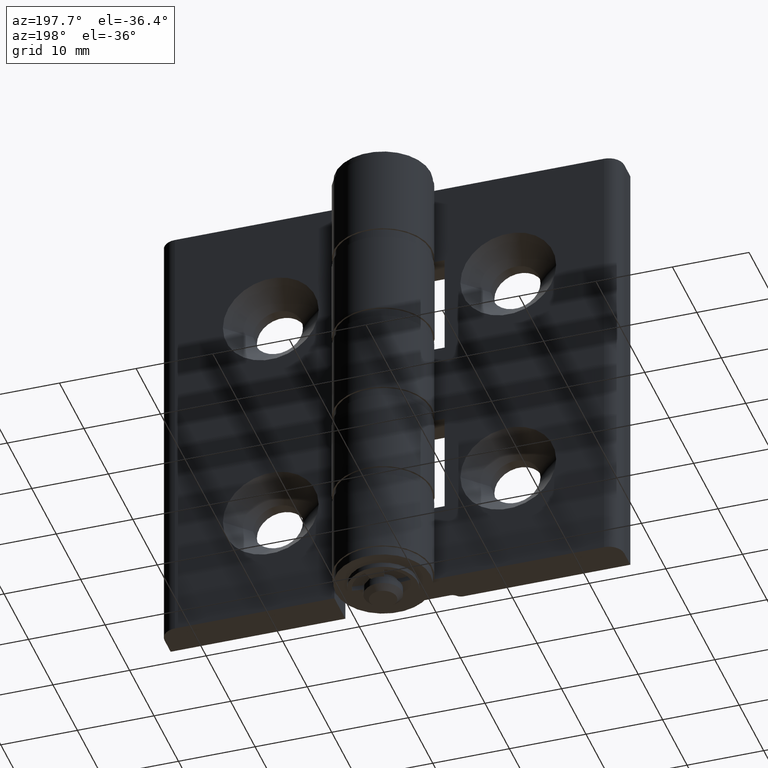
[diagram: clean part render]
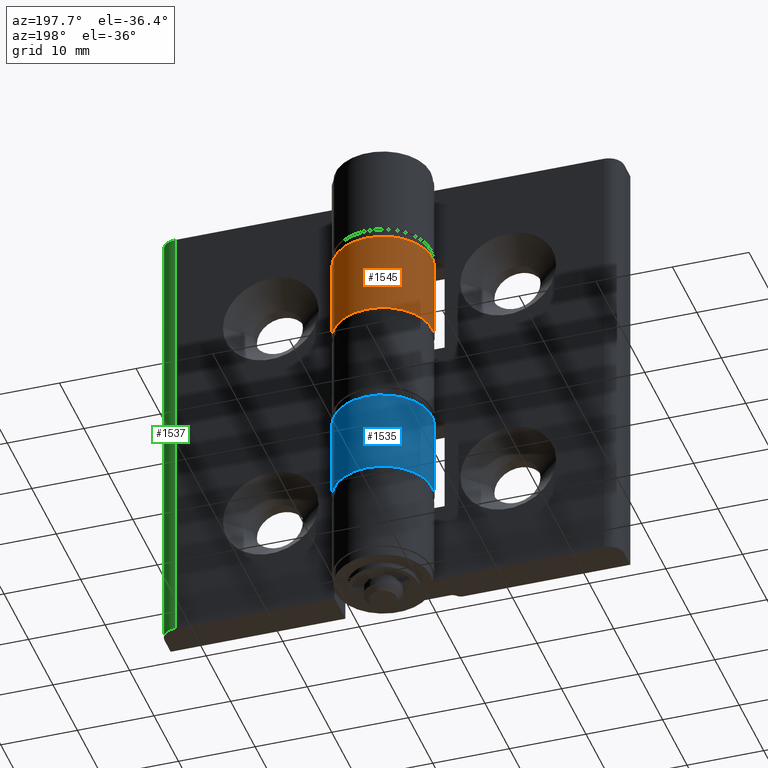
[diagram: same view with three faces highlighted in distinct colors, each labeled with its STEP entity id]
A machine part, auxiliary view with three faces highlighted in distinct colors.
Their STEP definitions:

[orange] entity #1545 — the highlighted cylindrical surface (partial cylindrical patch) has radius 6.4 mm, axis along (0, 0, -1).
#250=FACE_OUTER_BOUND('',#385,.T.);
#385=EDGE_LOOP('',(#1331,#1332,#1333,#1334));
#484=LINE('',#2563,#587);
#496=LINE('',#2593,#599);
#587=VECTOR('',#2083,11.);
#599=VECTOR('',#2115,11.);
#684=CIRCLE('',#1689,6.4);
#688=CIRCLE('',#1695,6.4);
#804=VERTEX_POINT('',#2535);
#805=VERTEX_POINT('',#2537);
#811=VERTEX_POINT('',#2553);
#812=VERTEX_POINT('',#2555);
#971=EDGE_CURVE('',#805,#804,#684,.T.);
#980=EDGE_CURVE('',#812,#811,#688,.T.);
#984=EDGE_CURVE('',#804,#812,#484,.T.);
#998=EDGE_CURVE('',#811,#805,#496,.T.);
#1331=ORIENTED_EDGE('',*,*,#971,.T.);
#1332=ORIENTED_EDGE('',*,*,#984,.T.);
#1333=ORIENTED_EDGE('',*,*,#980,.T.);
#1334=ORIENTED_EDGE('',*,*,#998,.T.);
#1465=CYLINDRICAL_SURFACE('',#1711,6.4);
#1545=ADVANCED_FACE('',(#250),#1465,.T.);
#1689=AXIS2_PLACEMENT_3D('',#2538,#2056,#2057);
#1695=AXIS2_PLACEMENT_3D('',#2556,#2073,#2074);
#1711=AXIS2_PLACEMENT_3D('',#2598,#2122,#2123);
#2056=DIRECTION('center_axis',(0.,0.,1.));
#2057=DIRECTION('ref_axis',(-1.,0.,0.));
#2073=DIRECTION('center_axis',(-1.48029736616688E-16,-3.28692043842089E-32,
-1.));
#2074=DIRECTION('ref_axis',(-1.,0.,0.));
#2083=DIRECTION('',(0.,0.,1.));
#2115=DIRECTION('',(0.,0.,-1.));
#2122=DIRECTION('center_axis',(0.,0.,-1.));
#2123=DIRECTION('ref_axis',(-1.,0.,0.));
#2535=CARTESIAN_POINT('',(-2.14313189850786E-16,0.699999999999998,-23.25));
#2537=CARTESIAN_POINT('',(5.84807660688538,4.5,-23.25));
#2538=CARTESIAN_POINT('Origin',(0.,7.1,-23.25));
#2553=CARTESIAN_POINT('',(5.84807660688538,4.5,-12.25));
#2555=CARTESIAN_POINT('',(-2.14313189850786E-16,0.699999999999998,-12.25));
#2556=CARTESIAN_POINT('Origin',(0.,7.1,-12.25));
#2563=CARTESIAN_POINT('',(-2.14313189850786E-16,0.699999999999998,0.));
#2593=CARTESIAN_POINT('',(5.84807660688538,4.5,0.));
#2598=CARTESIAN_POINT('Origin',(0.,7.1,0.));

[blue] entity #1535 — the highlighted cylindrical surface (partial cylindrical patch) has radius 6.4 mm, axis along (0, 0, -1).
#240=FACE_OUTER_BOUND('',#369,.T.);
#369=EDGE_LOOP('',(#1277,#1278,#1279,#1280));
#483=LINE('',#2561,#586);
#485=LINE('',#2565,#588);
#586=VECTOR('',#2080,11.);
#588=VECTOR('',#2086,11.);
#682=CIRCLE('',#1686,6.4);
#686=CIRCLE('',#1692,6.4);
#801=VERTEX_POINT('',#2527);
#802=VERTEX_POINT('',#2529);
#807=VERTEX_POINT('',#2543);
#808=VERTEX_POINT('',#2545);
#967=EDGE_CURVE('',#802,#801,#682,.T.);
#976=EDGE_CURVE('',#807,#808,#686,.T.);
#983=EDGE_CURVE('',#808,#802,#483,.T.);
#985=EDGE_CURVE('',#801,#807,#485,.T.);
#1277=ORIENTED_EDGE('',*,*,#967,.T.);
#1278=ORIENTED_EDGE('',*,*,#985,.T.);
#1279=ORIENTED_EDGE('',*,*,#976,.T.);
#1280=ORIENTED_EDGE('',*,*,#983,.T.);
#1461=CYLINDRICAL_SURFACE('',#1699,6.4);
#1535=ADVANCED_FACE('',(#240),#1461,.T.);
#1686=AXIS2_PLACEMENT_3D('',#2530,#2048,#2049);
#1692=AXIS2_PLACEMENT_3D('',#2547,#2065,#2066);
#1699=AXIS2_PLACEMENT_3D('',#2564,#2084,#2085);
#2048=DIRECTION('center_axis',(0.,0.,-1.));
#2049=DIRECTION('ref_axis',(-1.,0.,0.));
#2065=DIRECTION('center_axis',(0.,0.,1.));
#2066=DIRECTION('ref_axis',(-1.,0.,0.));
#2080=DIRECTION('',(0.,0.,1.));
#2084=DIRECTION('center_axis',(0.,0.,-1.));
#2085=DIRECTION('ref_axis',(-1.,0.,0.));
#2086=DIRECTION('',(0.,0.,-1.));
#2527=CARTESIAN_POINT('',(5.84807660688538,4.5,-36.75));
#2529=CARTESIAN_POINT('',(-2.14313189850786E-16,0.699999999999998,-36.75));
#2530=CARTESIAN_POINT('Origin',(0.,7.1,-36.75));
#2543=CARTESIAN_POINT('',(5.84807660688538,4.5,-47.75));
#2545=CARTESIAN_POINT('',(-2.14313189850786E-16,0.699999999999998,-47.75));
#2547=CARTESIAN_POINT('Origin',(0.,7.1,-47.75));
#2561=CARTESIAN_POINT('',(-2.14313189850786E-16,0.699999999999998,0.));
#2564=CARTESIAN_POINT('Origin',(0.,7.1,0.));
#2565=CARTESIAN_POINT('',(5.84807660688538,4.5,0.));

[green] entity #1537 — the highlighted cylindrical surface (edge-blend (fillet) strip) has radius 2 mm, axis along (0, 0, -1).
#242=FACE_OUTER_BOUND('',#372,.T.);
#372=EDGE_LOOP('',(#1283,#1284,#1285,#1286));
#486=LINE('',#2572,#589);
#487=LINE('',#2575,#590);
#589=VECTOR('',#2093,60.);
#590=VECTOR('',#2096,60.);
#690=CIRCLE('',#1702,2.);
#691=CIRCLE('',#1703,2.);
#814=VERTEX_POINT('',#2568);
#815=VERTEX_POINT('',#2569);
#816=VERTEX_POINT('',#2571);
#817=VERTEX_POINT('',#2573);
#986=EDGE_CURVE('',#814,#815,#690,.T.);
#987=EDGE_CURVE('',#815,#816,#486,.T.);
#988=EDGE_CURVE('',#816,#817,#691,.T.);
#989=EDGE_CURVE('',#817,#814,#487,.T.);
#1283=ORIENTED_EDGE('',*,*,#986,.T.);
#1284=ORIENTED_EDGE('',*,*,#987,.T.);
#1285=ORIENTED_EDGE('',*,*,#988,.T.);
#1286=ORIENTED_EDGE('',*,*,#989,.T.);
#1463=CYLINDRICAL_SURFACE('',#1701,2.);
#1537=ADVANCED_FACE('',(#242),#1463,.T.);
#1701=AXIS2_PLACEMENT_3D('',#2567,#2089,#2090);
#1702=AXIS2_PLACEMENT_3D('',#2570,#2091,#2092);
#1703=AXIS2_PLACEMENT_3D('',#2574,#2094,#2095);
#2089=DIRECTION('center_axis',(0.,0.,-1.));
#2090=DIRECTION('ref_axis',(0.707106781186548,0.707106781186547,0.));
#2091=DIRECTION('center_axis',(0.,0.,1.));
#2092=DIRECTION('ref_axis',(0.707106781186548,0.707106781186547,0.));
#2093=DIRECTION('',(0.,0.,1.));
#2094=DIRECTION('center_axis',(0.,0.,-1.));
#2095=DIRECTION('ref_axis',(0.707106781186548,0.707106781186547,0.));
#2096=DIRECTION('',(0.,0.,-1.));
#2567=CARTESIAN_POINT('Origin',(28.,2.5,0.));
#2568=CARTESIAN_POINT('',(30.,2.5,-60.));
#2569=CARTESIAN_POINT('',(28.,4.5,-60.));
#2570=CARTESIAN_POINT('Origin',(28.,2.5,-60.));
#2571=CARTESIAN_POINT('',(28.,4.5,0.));
#2572=CARTESIAN_POINT('',(28.,4.5,0.));
#2573=CARTESIAN_POINT('',(30.,2.5,0.));
#2574=CARTESIAN_POINT('Origin',(28.,2.5,0.));
#2575=CARTESIAN_POINT('',(30.,2.5,0.));